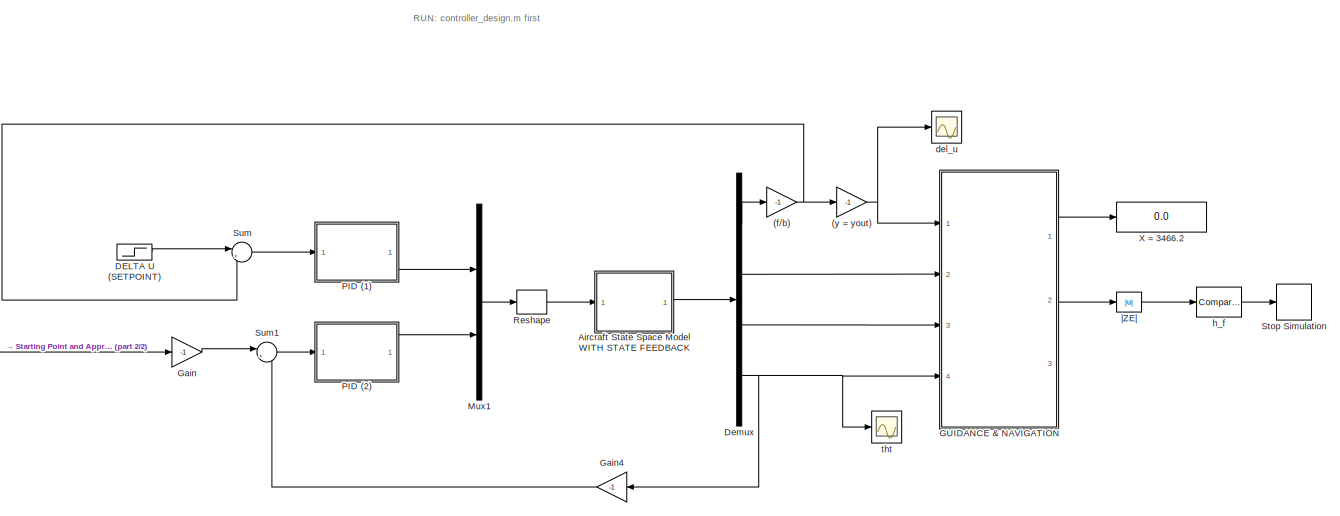
[diagram: root canvas - part 1/2, most of the canvas]
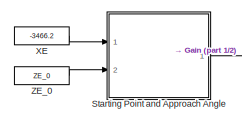
[diagram: root canvas - part 2/2, bottom left region]
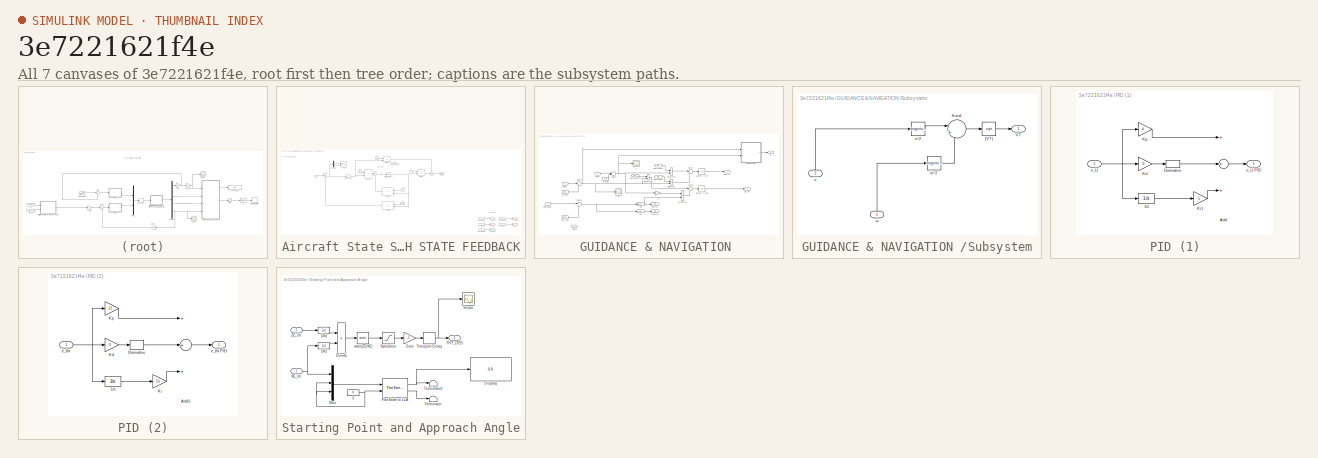
[diagram: thumbnail index - all 7 canvases of the model, root first then tree order]
MODEL slx_3e7221621f4e
KIND model
CONFIG AbsTol = auto
CONFIG FixedStep = auto
CONFIG MaxStep = auto
CONFIG MinStep = auto
CONFIG RelTol = 1e-3
CONFIG SampleTimeConstraint = Unconstrained
CONFIG Solver = ode45
CONFIG SolverMode = Auto
CONFIG SolverName = ode45
CONFIG StartTime = 0.0
CONFIG StopTime = 196
BLOCK [Gain] (f//b)
  Gain = -1
  OutDataTypeStr = Inherit: Inherit via internal rule
  ParamDataTypeStr = Inherit: Inherit via internal rule
  SaturateOnIntegerOverflow = off
BLOCK [Gain] (y = yout)
  Gain = -1
  OutDataTypeStr = Inherit: Inherit via internal rule
  ParamDataTypeStr = Inherit: Inherit via internal rule
  SaturateOnIntegerOverflow = off
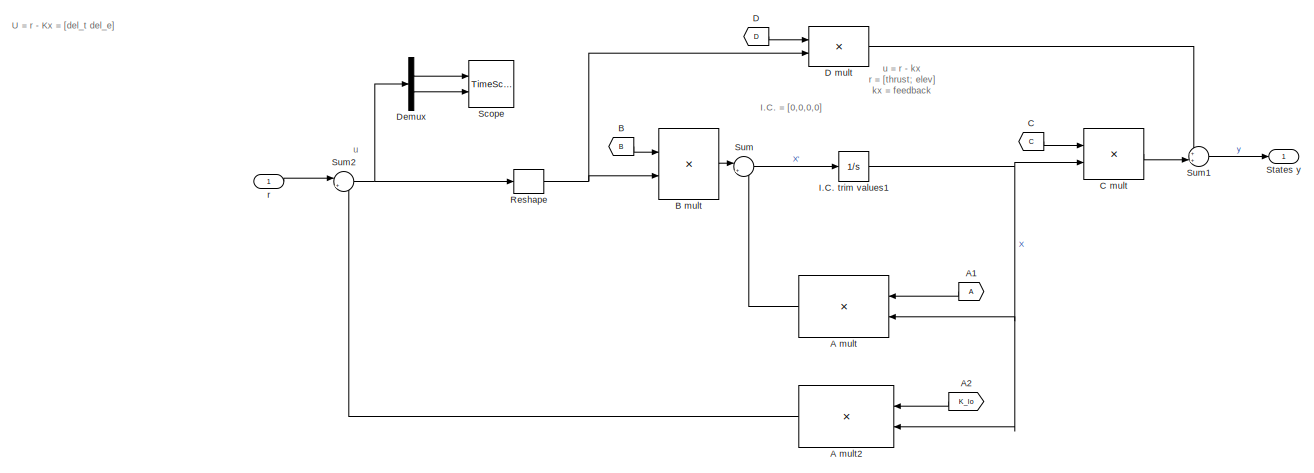
[diagram: Aircraft State Space Model WITH STATE FEEDBACK - part 1/2, central region]
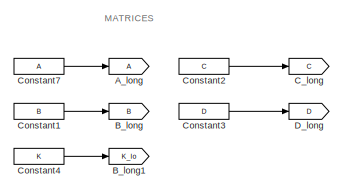
[diagram: Aircraft State Space Model WITH STATE FEEDBACK - part 2/2, bottom right region]
BLOCK [SubSystem] Aircraft State Space Model WITH STATE FEEDBACK
  Ports = [1, 1]
  RequestExecContextInheritance = off
BLOCK [Product] Aircraft State Space Model WITH STATE FEEDBACK/A mult
  InputSameDT = off
  Multiplication = Matrix(*)
  OutDataTypeStr = Inherit: Inherit via internal rule
  Ports = [2, 1]
  SaturateOnIntegerOverflow = off
BLOCK [Product] Aircraft State Space Model WITH STATE FEEDBACK/A mult2
  InputSameDT = off
  Multiplication = Matrix(*)
  OutDataTypeStr = Inherit: Inherit via internal rule
  Ports = [2, 1]
  SaturateOnIntegerOverflow = off
BLOCK [From] Aircraft State Space Model WITH STATE FEEDBACK/A1
BLOCK [From] Aircraft State Space Model WITH STATE FEEDBACK/A2
  GotoTag = K_lo
BLOCK [Goto] Aircraft State Space Model WITH STATE FEEDBACK/A_long
BLOCK [From] Aircraft State Space Model WITH STATE FEEDBACK/B
  GotoTag = B
BLOCK [Product] Aircraft State Space Model WITH STATE FEEDBACK/B mult
  InputSameDT = off
  Multiplication = Matrix(*)
  OutDataTypeStr = Inherit: Inherit via internal rule
  Ports = [2, 1]
  SaturateOnIntegerOverflow = off
BLOCK [Goto] Aircraft State Space Model WITH STATE FEEDBACK/B_long
  GotoTag = B
BLOCK [Goto] Aircraft State Space Model WITH STATE FEEDBACK/B_long1
  GotoTag = K_lo
BLOCK [From] Aircraft State Space Model WITH STATE FEEDBACK/C
  GotoTag = C
BLOCK [Product] Aircraft State Space Model WITH STATE FEEDBACK/C mult
  InputSameDT = off
  Multiplication = Matrix(*)
  OutDataTypeStr = Inherit: Inherit via internal rule
  Ports = [2, 1]
  SaturateOnIntegerOverflow = off
BLOCK [Goto] Aircraft State Space Model WITH STATE FEEDBACK/C_long
  GotoTag = C
BLOCK [Constant] Aircraft State Space Model WITH STATE FEEDBACK/Constant1
  Value = B
BLOCK [Constant] Aircraft State Space Model WITH STATE FEEDBACK/Constant2
  Value = C
BLOCK [Constant] Aircraft State Space Model WITH STATE FEEDBACK/Constant3
  Value = D
BLOCK [Constant] Aircraft State Space Model WITH STATE FEEDBACK/Constant4
  Value = K
BLOCK [Constant] Aircraft State Space Model WITH STATE FEEDBACK/Constant7
  Value = A
BLOCK [From] Aircraft State Space Model WITH STATE FEEDBACK/D
  GotoTag = D
BLOCK [Product] Aircraft State Space Model WITH STATE FEEDBACK/D mult
  InputSameDT = off
  Multiplication = Matrix(*)
  OutDataTypeStr = Inherit: Inherit via internal rule
  Ports = [2, 1]
  SaturateOnIntegerOverflow = off
BLOCK [Goto] Aircraft State Space Model WITH STATE FEEDBACK/D_long
  GotoTag = D
BLOCK [Demux] Aircraft State Space Model WITH STATE FEEDBACK/Demux
  DisplayOption = bar
  Outputs = 2
  Ports = [1, 2]
BLOCK [Integrator] Aircraft State Space Model WITH STATE FEEDBACK/I.C. trim values1
  InitialCondition = [0;0;0;0]
  Ports = [1, 1]
BLOCK [Reshape] Aircraft State Space Model WITH STATE FEEDBACK/Reshape
  OutputDimensionality = Customize
  OutputDimensions = [2,1]
  Ports = [1, 1]
BLOCK [TimeScope] Aircraft State Space Model WITH STATE FEEDBACK/Scope
  NumInputPorts = 2
  Ports = [2]
  ScopeSpecificationString = Simulink.scopes.TimeScopeBlockCfg('CurrentConfiguration', extmgr.ConfigurationSet(extmgr.Configuration('Core','General UI',true),extmgr.Configuration('Core','Source UI',true),extmgr.Configuration('Sources','WiredSimulink',true,'DataLogging',true,'DataLoggingVariableName','ScopeData2','DataLoggingSaveFormat','StructureWithTime'),extmgr.Configuration('Visuals','Time Domain',true,'SerializedDisplays'...<+2163ch>
BLOCK [Outport] Aircraft State Space Model WITH STATE FEEDBACK/States y
  IconDisplay = Port number
BLOCK [Sum] Aircraft State Space Model WITH STATE FEEDBACK/Sum
  IconShape = round
  InputSameDT = off
  Inputs = |++
  OutDataTypeStr = Inherit: Inherit via internal rule
  Ports = [2, 1]
  SaturateOnIntegerOverflow = off
BLOCK [Sum] Aircraft State Space Model WITH STATE FEEDBACK/Sum1
  IconShape = round
  InputSameDT = off
  Inputs = ++|
  OutDataTypeStr = Inherit: Inherit via internal rule
  Ports = [2, 1]
  SaturateOnIntegerOverflow = off
BLOCK [Sum] Aircraft State Space Model WITH STATE FEEDBACK/Sum2
  IconShape = round
  InputSameDT = off
  Inputs = |+-
  OutDataTypeStr = Inherit: Inherit via internal rule
  Ports = [2, 1]
  SaturateOnIntegerOverflow = off
BLOCK [Inport] Aircraft State Space Model WITH STATE FEEDBACK/r
  IconDisplay = Port number
BLOCK [Step] DELTA U (SETPOINT)
  After = 24.3
  SampleTime = 0
BLOCK [Demux] Demux
  DisplayOption = bar
  Ports = [1, 4]
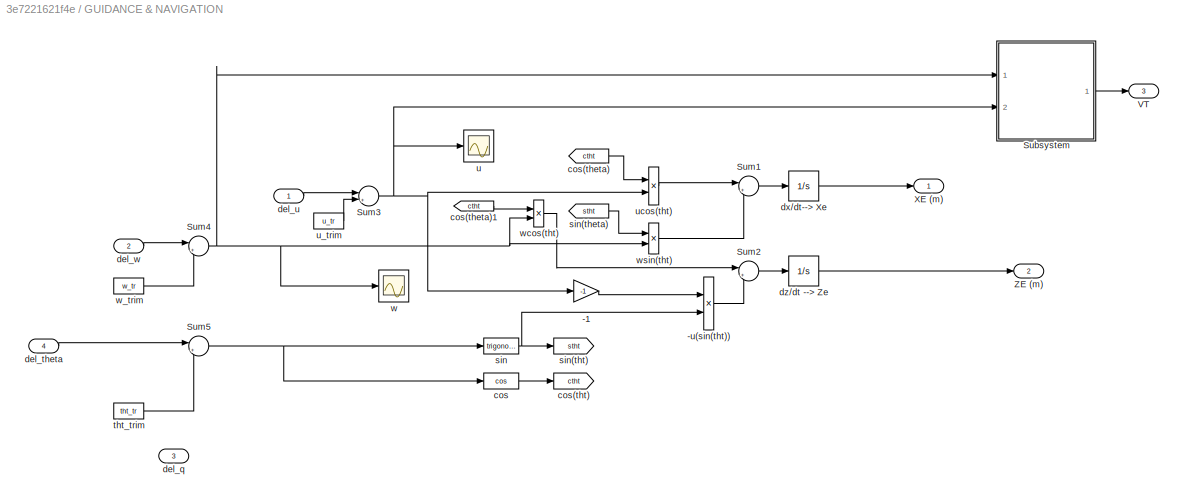
BLOCK [SubSystem] GUIDANCE & NAVIGATION 
  Ports = [4, 3]
  RequestExecContextInheritance = off
BLOCK [Gain] GUIDANCE & NAVIGATION /-1
  Gain = -1
  OutDataTypeStr = Inherit: Inherit via internal rule
  ParamDataTypeStr = Inherit: Inherit via internal rule
  SaturateOnIntegerOverflow = off
BLOCK [Product] GUIDANCE & NAVIGATION /-u(sin(tht))
  InputSameDT = off
  OutDataTypeStr = Inherit: Inherit via internal rule
  Ports = [2, 1]
  RndMeth = Floor
  SaturateOnIntegerOverflow = off
BLOCK [SubSystem] GUIDANCE & NAVIGATION /Subsystem
  Ports = [2, 1]
  RequestExecContextInheritance = off
BLOCK [Sum] GUIDANCE & NAVIGATION /Subsystem/Sum1
  IconShape = round
  InputSameDT = off
  Inputs = |++
  OutDataTypeStr = Inherit: Inherit via internal rule
  Ports = [2, 1]
  SaturateOnIntegerOverflow = off
BLOCK [Outport] GUIDANCE & NAVIGATION /Subsystem/VT
  IconDisplay = Port number
BLOCK [Inport] GUIDANCE & NAVIGATION /Subsystem/u
  IconDisplay = Port number
  Port = 2
BLOCK [Math] GUIDANCE & NAVIGATION /Subsystem/u^2
  Operator = magnitude^2
  Ports = [1, 1]
BLOCK [Inport] GUIDANCE & NAVIGATION /Subsystem/w
  IconDisplay = Port number
BLOCK [Math] GUIDANCE & NAVIGATION /Subsystem/w^2
  Operator = magnitude^2
  Ports = [1, 1]
BLOCK [Sqrt] GUIDANCE & NAVIGATION /Subsystem/|VT|
BLOCK [Sum] GUIDANCE & NAVIGATION /Sum1
  IconShape = round
  InputSameDT = off
  Inputs = |++
  OutDataTypeStr = Inherit: Inherit via internal rule
  Ports = [2, 1]
  SaturateOnIntegerOverflow = off
BLOCK [Sum] GUIDANCE & NAVIGATION /Sum2
  IconShape = round
  InputSameDT = off
  Inputs = |++
  OutDataTypeStr = Inherit: Inherit via internal rule
  Ports = [2, 1]
  SaturateOnIntegerOverflow = off
BLOCK [Sum] GUIDANCE & NAVIGATION /Sum3
  IconShape = round
  InputSameDT = off
  Inputs = |++
  OutDataTypeStr = Inherit: Inherit via internal rule
  Ports = [2, 1]
  SaturateOnIntegerOverflow = off
BLOCK [Sum] GUIDANCE & NAVIGATION /Sum4
  IconShape = round
  InputSameDT = off
  Inputs = |++
  OutDataTypeStr = Inherit: Inherit via internal rule
  Ports = [2, 1]
  SaturateOnIntegerOverflow = off
BLOCK [Sum] GUIDANCE & NAVIGATION /Sum5
  IconShape = round
  InputSameDT = off
  Inputs = |++
  OutDataTypeStr = Inherit: Inherit via internal rule
  Ports = [2, 1]
  SaturateOnIntegerOverflow = off
BLOCK [Outport] GUIDANCE & NAVIGATION /VT
  IconDisplay = Port number
  Port = 3
BLOCK [Outport] GUIDANCE & NAVIGATION /XE (m)
  IconDisplay = Port number
BLOCK [Outport] GUIDANCE & NAVIGATION /ZE (m)
  IconDisplay = Port number
  Port = 2
BLOCK [Trigonometry] GUIDANCE & NAVIGATION /cos
  Operator = cos
  Ports = [1, 1]
BLOCK [From] GUIDANCE & NAVIGATION /cos(theta)
  GotoTag = ctht
BLOCK [From] GUIDANCE & NAVIGATION /cos(theta)1
  GotoTag = ctht
BLOCK [Goto] GUIDANCE & NAVIGATION /cos(tht)
  GotoTag = ctht
BLOCK [Inport] GUIDANCE & NAVIGATION /del_q
  IconDisplay = Port number
  Port = 3
BLOCK [Inport] GUIDANCE & NAVIGATION /del_theta
  IconDisplay = Port number
  Port = 4
BLOCK [Inport] GUIDANCE & NAVIGATION /del_u
  IconDisplay = Port number
BLOCK [Inport] GUIDANCE & NAVIGATION /del_w
  IconDisplay = Port number
  Port = 2
BLOCK [Integrator] GUIDANCE & NAVIGATION /dx//dt--> Xe
  InitialCondition = XE_0
  Ports = [1, 1]
BLOCK [Integrator] GUIDANCE & NAVIGATION /dz//dt --> Ze
  InitialCondition = ZE_0
  Ports = [1, 1]
BLOCK [Trigonometry] GUIDANCE & NAVIGATION /sin
  Ports = [1, 1]
BLOCK [From] GUIDANCE & NAVIGATION /sin(theta)
  GotoTag = stht
BLOCK [Goto] GUIDANCE & NAVIGATION /sin(tht)
  GotoTag = stht
BLOCK [Constant] GUIDANCE & NAVIGATION /tht_trim
  Value = tht_tr
BLOCK [Scope] GUIDANCE & NAVIGATION /u
  Floating = off
  NumInputPorts = 1
  Ports = [1]
  SaveName = ScopeData4
BLOCK [Constant] GUIDANCE & NAVIGATION /u_trim
  Value = u_tr
BLOCK [Product] GUIDANCE & NAVIGATION /ucos(tht)
  InputSameDT = off
  OutDataTypeStr = Inherit: Inherit via internal rule
  Ports = [2, 1]
  RndMeth = Floor
  SaturateOnIntegerOverflow = off
BLOCK [Scope] GUIDANCE & NAVIGATION /w
  Floating = off
  NumInputPorts = 1
  Ports = [1]
  SaveName = ScopeData5
BLOCK [Constant] GUIDANCE & NAVIGATION /w_trim
  Value = w_tr
BLOCK [Product] GUIDANCE & NAVIGATION /wcos(tht)
  InputSameDT = off
  OutDataTypeStr = Inherit: Inherit via internal rule
  Ports = [2, 1]
  RndMeth = Floor
  SaturateOnIntegerOverflow = off
BLOCK [Product] GUIDANCE & NAVIGATION /wsin(tht)
  InputSameDT = off
  OutDataTypeStr = Inherit: Inherit via internal rule
  Ports = [2, 1]
  RndMeth = Floor
  SaturateOnIntegerOverflow = off
BLOCK [Gain] Gain
  Gain = -1
  OutDataTypeStr = Inherit: Inherit via internal rule
  ParamDataTypeStr = Inherit: Inherit via internal rule
  SaturateOnIntegerOverflow = off
BLOCK [Gain] Gain4
  Gain = -1
  OutDataTypeStr = Inherit: Inherit via internal rule
  ParamDataTypeStr = Inherit: Inherit via internal rule
  SaturateOnIntegerOverflow = off
BLOCK [Mux] Mux1
  DisplayOption = bar
  Inputs = 2
  Ports = [2, 1]
BLOCK [SubSystem] PID (1)
  Ports = [1, 1]
  RequestExecContextInheritance = off
BLOCK [Integrator] PID (1)/1//s
  Ports = [1, 1]
BLOCK [Sum] PID (1)/Add
  InputSameDT = off
  Inputs = +++
  OutDataTypeStr = Inherit: Inherit via internal rule
  Ports = [3, 1]
  SaturateOnIntegerOverflow = off
BLOCK [Derivative] PID (1)/Derivative
BLOCK [Gain] PID (1)/Kd
  Gain = 0
  OutDataTypeStr = Inherit: Inherit via internal rule
  ParamDataTypeStr = Inherit: Inherit via internal rule
  SaturateOnIntegerOverflow = off
BLOCK [Gain] PID (1)/Ki1
  Gain = 5
  OutDataTypeStr = Inherit: Inherit via internal rule
  ParamDataTypeStr = Inherit: Inherit via internal rule
  SaturateOnIntegerOverflow = off
BLOCK [Gain] PID (1)/Kp
  OutDataTypeStr = Inherit: Inherit via internal rule
  ParamDataTypeStr = Inherit: Inherit via internal rule
  SaturateOnIntegerOverflow = off
BLOCK [Inport] PID (1)/e_U
  IconDisplay = Port number
BLOCK [Outport] PID (1)/e_U PID
  IconDisplay = Port number
BLOCK [SubSystem] PID (2)
  Ports = [1, 1]
  RequestExecContextInheritance = off
BLOCK [Integrator] PID (2)/1//s
  Ports = [1, 1]
BLOCK [Sum] PID (2)/Add1
  InputSameDT = off
  Inputs = +++
  OutDataTypeStr = Inherit: Inherit via internal rule
  Ports = [3, 1]
  SaturateOnIntegerOverflow = off
BLOCK [Derivative] PID (2)/Derivative
BLOCK [Gain] PID (2)/Kd 
  Gain = 0
  OutDataTypeStr = Inherit: Inherit via internal rule
  ParamDataTypeStr = Inherit: Inherit via internal rule
  SaturateOnIntegerOverflow = off
BLOCK [Gain] PID (2)/Ki 
  Gain = 55
  OutDataTypeStr = Inherit: Inherit via internal rule
  ParamDataTypeStr = Inherit: Inherit via internal rule
  SaturateOnIntegerOverflow = off
BLOCK [Gain] PID (2)/Kp
  Gain = 12
  OutDataTypeStr = Inherit: Inherit via internal rule
  ParamDataTypeStr = Inherit: Inherit via internal rule
  SaturateOnIntegerOverflow = off
BLOCK [Inport] PID (2)/e_tht
  IconDisplay = Port number
BLOCK [Outport] PID (2)/e_tht PID
  IconDisplay = Port number
BLOCK [Reshape] Reshape
  OutputDimensionality = Customize
  OutputDimensions = [2,1]
  Ports = [1, 1]
BLOCK [SubSystem] Starting Point and Approach Angle
  Ports = [2, 1]
  RequestExecContextInheritance = off
BLOCK [Constant] Starting Point and Approach Angle/0
  Value = 0
BLOCK [Display] Starting Point and Approach Angle/Display
  Decimation = 1
  Format = long
  Ports = [1]
BLOCK [Product] Starting Point and Approach Angle/Divide
  InputSameDT = off
  Inputs = */
  OutDataTypeStr = Inherit: Inherit via internal rule
  Ports = [2, 1]
  RndMeth = Floor
  SaturateOnIntegerOverflow = off
BLOCK [Reference] Starting Point and Approach Angle/Flat Earth to LLA  REF=aerolibtransform2/Flat Earth to LLA
  F = 1/298.257223563
  LL0 = [45.457775 73.741389]
  Ports = [2, 2]
  R = 6378137
  SourceBlock = aerolibtransform2/Flat Earth to LLA
  SourceType = Flat Earth to LLA
  psi = h
  ptype = Earth (WGS84)
  units = Metric (MKS)
BLOCK [Gain] Starting Point and Approach Angle/Gain
  Gain = -1
  OutDataTypeStr = Inherit: Inherit via internal rule
  ParamDataTypeStr = Inherit: Inherit via internal rule
  SaturateOnIntegerOverflow = off
BLOCK [Mux] Starting Point and Approach Angle/Mux
  DisplayOption = bar
  Inputs = 3
  Ports = [3, 1]
BLOCK [Saturate] Starting Point and Approach Angle/Saturation
  InputPortMap = u0
  LowerLimit = -0.5235
  Ports = [1, 1]
  UpperLimit = 0.5235
BLOCK [Scope] Starting Point and Approach Angle/Scope
  Floating = off
  NumInputPorts = 1
  Ports = [1]
  SaveName = ScopeData2
BLOCK [Outport] Starting Point and Approach Angle/THT_DES
  IconDisplay = Port number
BLOCK [Terminator] Starting Point and Approach Angle/Terminator
BLOCK [Terminator] Starting Point and Approach Angle/Terminator1
BLOCK [TransportDelay] Starting Point and Approach Angle/Transport Delay
  Ports = [1, 1]
BLOCK [Inport] Starting Point and Approach Angle/XE_str
  IconDisplay = Port number
BLOCK [Inport] Starting Point and Approach Angle/ZE_str
  IconDisplay = Port number
  Port = 2
BLOCK [Trigonometry] Starting Point and Approach Angle/atan(ZE//XE)
  Operator = atan
  Ports = [1, 1]
BLOCK [Abs] Starting Point and Approach Angle/|Xe|
  SaturateOnIntegerOverflow = off
BLOCK [Abs] Starting Point and Approach Angle/|Ze|
  SaturateOnIntegerOverflow = off
BLOCK [Stop] Stop Simulation
BLOCK [Sum] Sum
  IconShape = round
  InputSameDT = off
  Inputs = |+-
  OutDataTypeStr = Inherit: Inherit via internal rule
  Ports = [2, 1]
  SaturateOnIntegerOverflow = off
BLOCK [Sum] Sum1
  IconShape = round
  InputSameDT = off
  Inputs = |+-
  OutDataTypeStr = Inherit: Inherit via internal rule
  Ports = [2, 1]
  SaturateOnIntegerOverflow = off
BLOCK [Display] X = 3466.2
  Decimation = 1
  Ports = [1]
BLOCK [Constant] XE 
  Value = -3466.2
BLOCK [Constant] ZE_0
  Value = ZE_0
BLOCK [Scope] del_u
  Floating = off
  LimitDataPoints = off
  NumInputPorts = 1
  Ports = [1]
  SaveName = ScopeData1
  YMax = -800000
  YMin = -1.225e+06
BLOCK [Reference] h_f  REF=simulink/Logic and Bit
Operations/Compare
To Constant
  OutDataTypeStr = boolean
  Ports = [1, 1]
  SourceBlock = simulink/Logic and Bit\nOperations/Compare\nTo Constant
  SourceType = Compare To Constant
  ZeroCross = on
  const = 36.0
  relop = <=
BLOCK [Scope] tht
  Floating = off
  LimitDataPoints = off
  NumInputPorts = 1
  Ports = [1]
  YMax = -10000
  YMin = -57500
BLOCK [Abs] |ZE|
  SaturateOnIntegerOverflow = off
ANNOTATION (root): RUN: controller_design.m first
ANNOTATION Aircraft State Space Model WITH STATE FEEDBACK: MATRICES
ANNOTATION Aircraft State Space Model WITH STATE FEEDBACK: I.C. = [0,0,0,0]
ANNOTATION Aircraft State Space Model WITH STATE FEEDBACK: U = r - Kx = [del_t del_e]
ANNOTATION Aircraft State Space Model WITH STATE FEEDBACK: u
ANNOTATION Aircraft State Space Model WITH STATE FEEDBACK: u = r - kx r = [thrust; elev] kx = feedback
NET (f//b):1 -> (y = yout):1, Sum:2
NET (y = yout):1 -> GUIDANCE & NAVIGATION :1, del_u:1
LINE Aircraft State Space Model WITH STATE FEEDBACK/A mult2:1 -> Aircraft State Space Model WITH STATE FEEDBACK/Sum2:2
LINE Aircraft State Space Model WITH STATE FEEDBACK/A mult:1 -> Aircraft State Space Model WITH STATE FEEDBACK/Sum:2
LINE Aircraft State Space Model WITH STATE FEEDBACK/A1:1 -> Aircraft State Space Model WITH STATE FEEDBACK/A mult:1
LINE Aircraft State Space Model WITH STATE FEEDBACK/A2:1 -> Aircraft State Space Model WITH STATE FEEDBACK/A mult2:1
LINE Aircraft State Space Model WITH STATE FEEDBACK/B mult:1 -> Aircraft State Space Model WITH STATE FEEDBACK/Sum:1
LINE Aircraft State Space Model WITH STATE FEEDBACK/B:1 -> Aircraft State Space Model WITH STATE FEEDBACK/B mult:1
LINE Aircraft State Space Model WITH STATE FEEDBACK/C mult:1 -> Aircraft State Space Model WITH STATE FEEDBACK/Sum1:2
LINE Aircraft State Space Model WITH STATE FEEDBACK/C:1 -> Aircraft State Space Model WITH STATE FEEDBACK/C mult:1
LINE Aircraft State Space Model WITH STATE FEEDBACK/Constant1:1 -> Aircraft State Space Model WITH STATE FEEDBACK/B_long:1
LINE Aircraft State Space Model WITH STATE FEEDBACK/Constant2:1 -> Aircraft State Space Model WITH STATE FEEDBACK/C_long:1
LINE Aircraft State Space Model WITH STATE FEEDBACK/Constant3:1 -> Aircraft State Space Model WITH STATE FEEDBACK/D_long:1
LINE Aircraft State Space Model WITH STATE FEEDBACK/Constant4:1 -> Aircraft State Space Model WITH STATE FEEDBACK/B_long1:1
LINE Aircraft State Space Model WITH STATE FEEDBACK/Constant7:1 -> Aircraft State Space Model WITH STATE FEEDBACK/A_long:1
LINE Aircraft State Space Model WITH STATE FEEDBACK/D mult:1 -> Aircraft State Space Model WITH STATE FEEDBACK/Sum1:1
LINE Aircraft State Space Model WITH STATE FEEDBACK/D:1 -> Aircraft State Space Model WITH STATE FEEDBACK/D mult:1
LINE Aircraft State Space Model WITH STATE FEEDBACK/Demux:1 -> Aircraft State Space Model WITH STATE FEEDBACK/Scope:1
LINE Aircraft State Space Model WITH STATE FEEDBACK/Demux:2 -> Aircraft State Space Model WITH STATE FEEDBACK/Scope:2
NET Aircraft State Space Model WITH STATE FEEDBACK/I.C. trim values1:1 -> Aircraft State Space Model WITH STATE FEEDBACK/A mult2:2, Aircraft State Space Model WITH STATE FEEDBACK/A mult:2, Aircraft State Space Model WITH STATE FEEDBACK/C mult:2
NET Aircraft State Space Model WITH STATE FEEDBACK/Reshape:1 -> Aircraft State Space Model WITH STATE FEEDBACK/B mult:2, Aircraft State Space Model WITH STATE FEEDBACK/D mult:2
LINE Aircraft State Space Model WITH STATE FEEDBACK/Sum1:1 -> Aircraft State Space Model WITH STATE FEEDBACK/States y:1
NET Aircraft State Space Model WITH STATE FEEDBACK/Sum2:1 -> Aircraft State Space Model WITH STATE FEEDBACK/Demux:1, Aircraft State Space Model WITH STATE FEEDBACK/Reshape:1
LINE Aircraft State Space Model WITH STATE FEEDBACK/Sum:1 -> Aircraft State Space Model WITH STATE FEEDBACK/I.C. trim values1:1
LINE Aircraft State Space Model WITH STATE FEEDBACK/r:1 -> Aircraft State Space Model WITH STATE FEEDBACK/Sum2:1
LINE Aircraft State Space Model WITH STATE FEEDBACK:1 -> Demux:1
LINE DELTA U (SETPOINT):1 -> Sum:1
LINE Demux:1 -> (f//b):1
LINE Demux:2 -> GUIDANCE & NAVIGATION :2
LINE Demux:3 -> GUIDANCE & NAVIGATION :3
NET Demux:4 -> GUIDANCE & NAVIGATION :4, Gain4:1, tht:1
LINE GUIDANCE & NAVIGATION /-1:1 -> GUIDANCE & NAVIGATION /-u(sin(tht)):1
LINE GUIDANCE & NAVIGATION /-u(sin(tht)):1 -> GUIDANCE & NAVIGATION /Sum2:2
LINE GUIDANCE & NAVIGATION /Subsystem/Sum1:1 -> GUIDANCE & NAVIGATION /Subsystem/|VT|:1
LINE GUIDANCE & NAVIGATION /Subsystem/u:1 -> GUIDANCE & NAVIGATION /Subsystem/u^2:1
LINE GUIDANCE & NAVIGATION /Subsystem/u^2:1 -> GUIDANCE & NAVIGATION /Subsystem/Sum1:1
LINE GUIDANCE & NAVIGATION /Subsystem/w:1 -> GUIDANCE & NAVIGATION /Subsystem/w^2:1
LINE GUIDANCE & NAVIGATION /Subsystem/w^2:1 -> GUIDANCE & NAVIGATION /Subsystem/Sum1:2
LINE GUIDANCE & NAVIGATION /Subsystem/|VT|:1 -> GUIDANCE & NAVIGATION /Subsystem/VT:1
LINE GUIDANCE & NAVIGATION /Subsystem:1 -> GUIDANCE & NAVIGATION /VT:1
LINE GUIDANCE & NAVIGATION /Sum1:1 -> GUIDANCE & NAVIGATION /dx//dt--> Xe:1
LINE GUIDANCE & NAVIGATION /Sum2:1 -> GUIDANCE & NAVIGATION /dz//dt --> Ze:1
NET GUIDANCE & NAVIGATION /Sum3:1 -> GUIDANCE & NAVIGATION /-1:1, GUIDANCE & NAVIGATION /Subsystem:2, GUIDANCE & NAVIGATION /u:1, GUIDANCE & NAVIGATION /ucos(tht):2
NET GUIDANCE & NAVIGATION /Sum4:1 -> GUIDANCE & NAVIGATION /Subsystem:1, GUIDANCE & NAVIGATION /w:1, GUIDANCE & NAVIGATION /wcos(tht):2, GUIDANCE & NAVIGATION /wsin(tht):2
NET GUIDANCE & NAVIGATION /Sum5:1 -> GUIDANCE & NAVIGATION /cos:1, GUIDANCE & NAVIGATION /sin:1
LINE GUIDANCE & NAVIGATION /cos(theta)1:1 -> GUIDANCE & NAVIGATION /wcos(tht):1
LINE GUIDANCE & NAVIGATION /cos(theta):1 -> GUIDANCE & NAVIGATION /ucos(tht):1
LINE GUIDANCE & NAVIGATION /cos:1 -> GUIDANCE & NAVIGATION /cos(tht):1
LINE GUIDANCE & NAVIGATION /del_theta:1 -> GUIDANCE & NAVIGATION /Sum5:1
LINE GUIDANCE & NAVIGATION /del_u:1 -> GUIDANCE & NAVIGATION /Sum3:1
LINE GUIDANCE & NAVIGATION /del_w:1 -> GUIDANCE & NAVIGATION /Sum4:1
LINE GUIDANCE & NAVIGATION /dx//dt--> Xe:1 -> GUIDANCE & NAVIGATION /XE (m):1
LINE GUIDANCE & NAVIGATION /dz//dt --> Ze:1 -> GUIDANCE & NAVIGATION /ZE (m):1
LINE GUIDANCE & NAVIGATION /sin(theta):1 -> GUIDANCE & NAVIGATION /wsin(tht):1
NET GUIDANCE & NAVIGATION /sin:1 -> GUIDANCE & NAVIGATION /-u(sin(tht)):2, GUIDANCE & NAVIGATION /sin(tht):1
LINE GUIDANCE & NAVIGATION /tht_trim:1 -> GUIDANCE & NAVIGATION /Sum5:2
LINE GUIDANCE & NAVIGATION /u_trim:1 -> GUIDANCE & NAVIGATION /Sum3:2
LINE GUIDANCE & NAVIGATION /ucos(tht):1 -> GUIDANCE & NAVIGATION /Sum1:1
LINE GUIDANCE & NAVIGATION /w_trim:1 -> GUIDANCE & NAVIGATION /Sum4:2
LINE GUIDANCE & NAVIGATION /wcos(tht):1 -> GUIDANCE & NAVIGATION /Sum2:1
LINE GUIDANCE & NAVIGATION /wsin(tht):1 -> GUIDANCE & NAVIGATION /Sum1:2
LINE GUIDANCE & NAVIGATION :1 -> X = 3466.2:1
LINE GUIDANCE & NAVIGATION :2 -> |ZE|:1
LINE Gain4:1 -> Sum1:2
LINE Gain:1 -> Sum1:1
LINE Mux1:1 -> Reshape:1
LINE PID (1)/1//s:1 -> PID (1)/Ki1:1
LINE PID (1)/Add:1 -> PID (1)/e_U PID:1
LINE PID (1)/Derivative:1 -> PID (1)/Add:2
LINE PID (1)/Kd:1 -> PID (1)/Derivative:1
LINE PID (1)/Ki1:1 -> PID (1)/Add:3
LINE PID (1)/Kp:1 -> PID (1)/Add:1
NET PID (1)/e_U:1 -> PID (1)/1//s:1, PID (1)/Kd:1, PID (1)/Kp:1
LINE PID (1):1 -> Mux1:1
LINE PID (2)/1//s:1 -> PID (2)/Ki :1
LINE PID (2)/Add1:1 -> PID (2)/e_tht PID:1
LINE PID (2)/Derivative:1 -> PID (2)/Add1:2
LINE PID (2)/Kd :1 -> PID (2)/Derivative:1
LINE PID (2)/Ki :1 -> PID (2)/Add1:3
LINE PID (2)/Kp:1 -> PID (2)/Add1:1
NET PID (2)/e_tht:1 -> PID (2)/1//s:1, PID (2)/Kd :1, PID (2)/Kp:1
LINE PID (2):1 -> Mux1:2
LINE Reshape:1 -> Aircraft State Space Model WITH STATE FEEDBACK:1
NET Starting Point and Approach Angle/0:1 -> Starting Point and Approach Angle/Flat Earth to LLA:2, Starting Point and Approach Angle/Mux:2, Starting Point and Approach Angle/Mux:3
LINE Starting Point and Approach Angle/Divide:1 -> Starting Point and Approach Angle/atan(ZE//XE):1
NET Starting Point and Approach Angle/Flat Earth to LLA:1 -> Starting Point and Approach Angle/Display:1, Starting Point and Approach Angle/Terminator1:1
LINE Starting Point and Approach Angle/Flat Earth to LLA:2 -> Starting Point and Approach Angle/Terminator:1
LINE Starting Point and Approach Angle/Gain:1 -> Starting Point and Approach Angle/Transport Delay:1
LINE Starting Point and Approach Angle/Mux:1 -> Starting Point and Approach Angle/Flat Earth to LLA:1
LINE Starting Point and Approach Angle/Saturation:1 -> Starting Point and Approach Angle/Gain:1
NET Starting Point and Approach Angle/Transport Delay:1 -> Starting Point and Approach Angle/Scope:1, Starting Point and Approach Angle/THT_DES:1
NET Starting Point and Approach Angle/XE_str:1 -> Starting Point and Approach Angle/Mux:1, Starting Point and Approach Angle/|Xe|:1
LINE Starting Point and Approach Angle/ZE_str:1 -> Starting Point and Approach Angle/|Ze|:1
LINE Starting Point and Approach Angle/atan(ZE//XE):1 -> Starting Point and Approach Angle/Saturation:1
LINE Starting Point and Approach Angle/|Xe|:1 -> Starting Point and Approach Angle/Divide:2
LINE Starting Point and Approach Angle/|Ze|:1 -> Starting Point and Approach Angle/Divide:1
LINE Starting Point and Approach Angle:1 -> Gain:1
LINE Sum1:1 -> PID (2):1
LINE Sum:1 -> PID (1):1
LINE XE :1 -> Starting Point and Approach Angle:1
LINE ZE_0:1 -> Starting Point and Approach Angle:2
LINE h_f:1 -> Stop Simulation:1
LINE |ZE|:1 -> h_f:1
note: NET lines group one-source signal fan-out (src -> all destinations, sorted); 1:1 wires keep LINE
